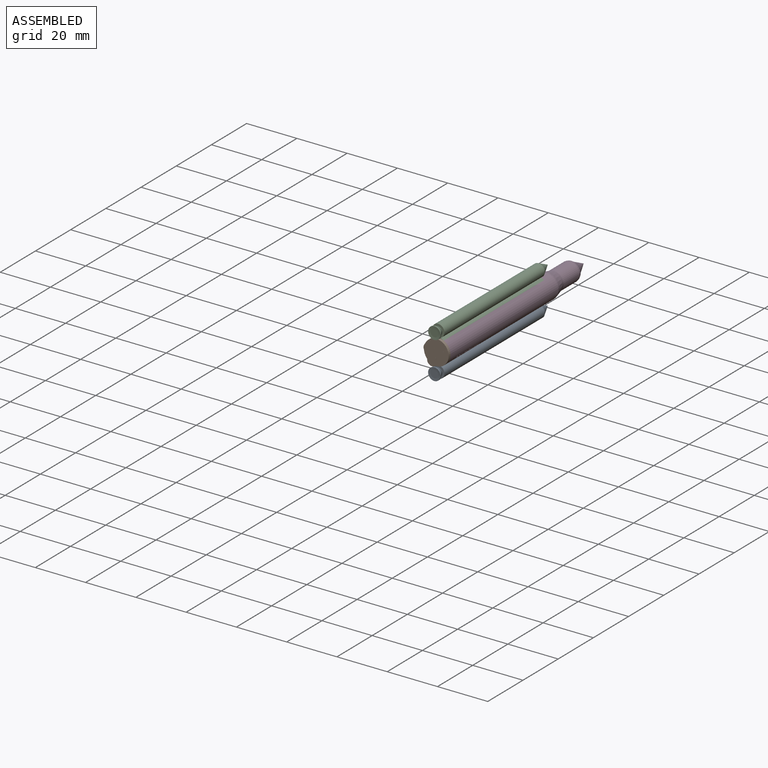
[diagram: assembled view]
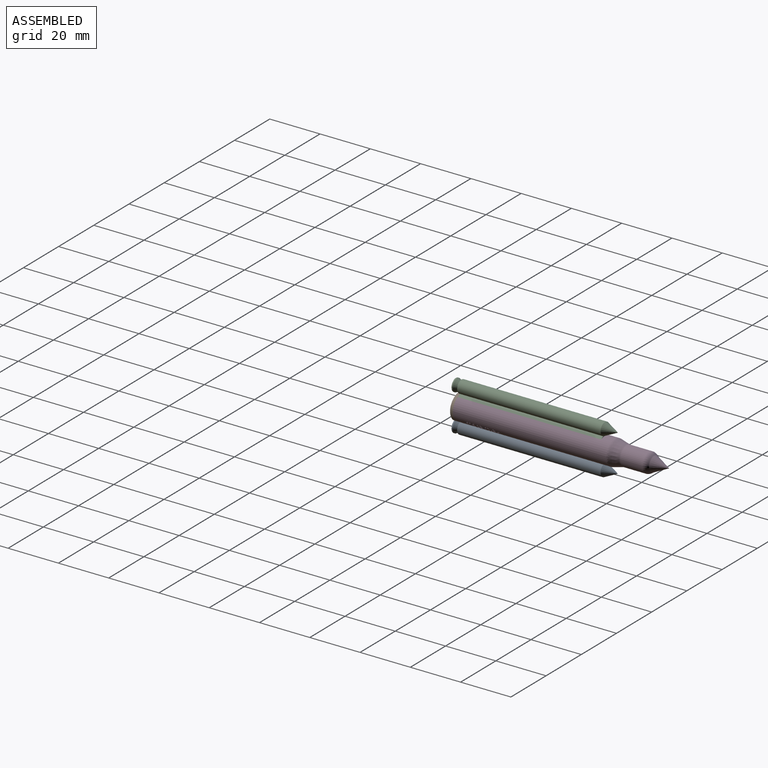
[diagram: assembled view, second angle]
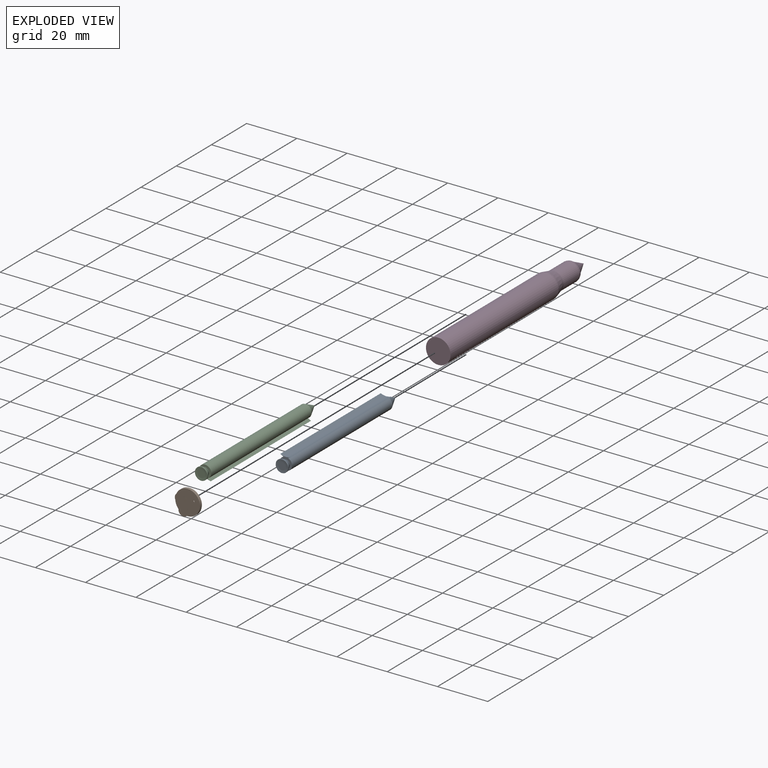
[diagram: exploded view]
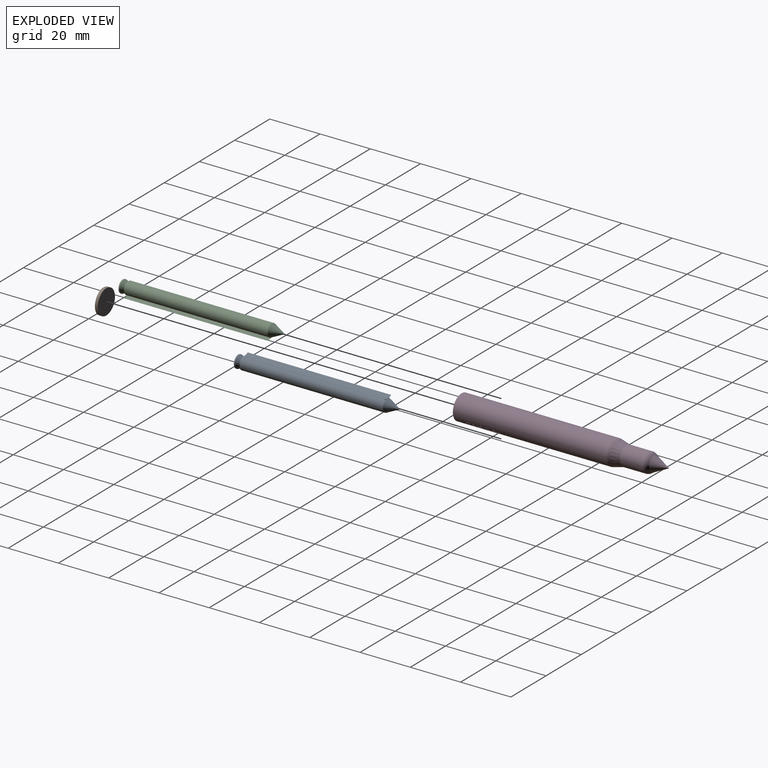
[diagram: exploded view, second angle]
ASSEMBLY  parts=4 mates=3
PART A: 12 faces, bbox 64.5x4.9x5.5 mm
  f0: cylinder r=2.47mm len=57.06mm, axis (-1,0,0), area 781.3mm2, adj f5,f6,f7,f10
  f1: plane 3.13x3.13mm, normal (1,0,0), area 7.7mm2, adj f2
  f2: cone r=2.47mm half-angle=84.1deg, axis (1,0,0), area 11.6mm2, adj f1,f3
  f3: cylinder r=2.47mm len=4.95mm, axis (-1,0,0), area 6.8mm2, adj f2,f4
  f4: cone r=1.56mm half-angle=26.7deg, axis (1,0,0), area 25.6mm2, adj f3,f5
  f5: plane 5.46x4.95mm, normal (1,0,0), area 11.9mm2, adj f0,f4,f7,f8,f10
  f6: cone r=2.47mm half-angle=25.6deg, axis (1,0,0), area 44.5mm2, adj f0,f9,f11
  f7: plane 57.06x1.29mm, normal (0,-0.47,0.88), area 83.3mm2, adj f0,f5,f8,f9
  f8: cylinder r=4.91mm len=57.06mm, axis (-1,0,0), area 259.2mm2, adj f5,f7,f9,f10,f11
  f9: plane 2.19x0.69mm, normal (-1,0,0), area 0.2mm2, adj f6,f7,f8
  f10: plane 57.06x1.29mm, normal (0,0.47,0.88), area 83.3mm2, adj f0,f5,f8,f11
  f11: plane 2.19x0.69mm, normal (-1,0,0), area 0.2mm2, adj f6,f8,f10
PART B: 12 faces, bbox 9.8x3x9.8 mm
  f0: plane 6.67x5.72mm, normal (0,-1,0), area 24.7mm2, adj f1,f2,f3,f7,f8,f10
  f1: plane 9.77x9.52mm, normal (0,-1,0), area 49.2mm2, adj f0,f2,f3,f5,f7,f8,f10
  f2: plane 1.92x0.73mm, normal (-0.35,0,0.94), area 0mm2, adj f0,f1,f8
  f3: cylinder r=4.91mm len=9.82mm, axis (0,1,0), area 34.2mm2, adj f0,f1,f4
  f4: plane 9.82x9.82mm, normal (0,1,0), area 75.7mm2, adj f3
  f5: cone r=0.4mm half-angle=40.4deg, axis (0,-1,0), area 17.7mm2, adj f1,f6
  f6: plane 3.95x3.95mm, normal (0,-1,0), area 12.2mm2, adj f5
  f7: plane 1.92x0.73mm, normal (-0.35,0,0.94), area 0mm2, adj f0,f1,f8
  f8: cone r=0.4mm half-angle=40.4deg, axis (0,-1,0), area 18.1mm2, adj f0,f1,f2,f7,f9
  f9: plane 3.95x3.95mm, normal (0,-1,0), area 12.2mm2, adj f8
  f10: cone r=0.4mm half-angle=40.4deg, axis (0,-1,0), area 18.1mm2, adj f0,f1,f11
  f11: plane 3.95x3.95mm, normal (0,-1,0), area 12.2mm2, adj f10
PART C: same geometry as A
PART D: 201 faces, bbox 9.8x82.6x9.8 mm
  f0: cylinder r=4.91mm len=61.06mm, axis (0,-1,0), area 1875.3mm2, adj f5,f6,f9,f10,f11,f12,f13,f14
  f1: cone r=4.91mm half-angle=14.2deg, axis (0,1,0), area 104.1mm2, adj f6,f7
  f2: cylinder r=3.82mm len=8.69mm, axis (0,-1,0), area 208.7mm2, adj f7,f8
  f3: cone r=2.94mm half-angle=37.5deg, axis (0,1,0), area 11.7mm2, adj f4,f8
  f4: cone r=2.94mm half-angle=26.4deg, axis (0,1,0), area 61.4mm2, adj f3
  f5: plane 9.82x9.82mm, normal (0,1,0), area 75.7mm2, adj f0
  f6: torus R=2.41mm, axis (0,1,0), area 19mm2, adj f0,f1
  f7: torus R=6.32mm, axis (0,-1,0), area 15mm2, adj f1,f2
  f8: torus R=1.32mm, axis (0,1,0), area 37.5mm2, adj f2,f3
  f9: extruded ~0.64x0.14mm, area 0.1mm2, adj f0,f10,f21,f22
  f10: extruded ~0.69x0.21mm, area 0.1mm2, adj f0,f9,f11,f22
  f11: extruded ~0.88x0.18mm, area 0.2mm2, adj f0,f10,f12,f22
  f12: plane 0.88x0.01mm, normal (0,0,-1), area 0mm2, adj f0,f11,f13,f22
  f13: plane 0.88x0.22mm, normal (0,-1,-0.09), area 0.2mm2, adj f0,f12,f14,f22
  f14: plane 0.65x0.15mm, normal (0,0,-1), area 0.1mm2, adj f0,f13,f15,f22
  f15: plane 1.63x1.2mm, normal (0,1,0), area 1.4mm2, adj f0,f14,f16,f22
  f16: plane 1.63x0.18mm, normal (0,0,1), area 0.3mm2, adj f0,f15,f17,f22
  f17: plane 1.63x0.64mm, normal (0,-1,0), area 0.9mm2, adj f0,f16,f18,f22
  f18: extruded ~1.18x0.29mm, area 0.3mm2, adj f0,f17,f19,f22
  f19: extruded ~0.92x0.25mm, area 0.2mm2, adj f0,f18,f20,f22
  f20: extruded ~0.82x0.13mm, area 0.1mm2, adj f0,f19,f21,f22
  f21: plane 0.82x0.17mm, normal (0,-0.99,0.15), area 0.1mm2, adj f0,f9,f20,f22
  f22: plane 1.22x0.69mm, normal (1,0,0), area 0.3mm2, adj f9,f10,f11,f12,f13,f14,f15,f16
  f23: extruded ~1.64x0.4mm, area 0.7mm2, adj f0,f24,f37,f38
  f24: extruded ~1.64x0.3mm, area 0.5mm2, adj f0,f23,f25,f38
  f25: plane 1.6x0.16mm, normal (0,-1,0), area 0.2mm2, adj f0,f24,f26,f38
  f26: extruded ~1.55x0.31mm, area 0.5mm2, adj f0,f25,f27,f38
  f27: extruded ~1.55x0.26mm, area 0.5mm2, adj f0,f26,f28,f38
  f28: extruded ~1.47x0.34mm, area 0.5mm2, adj f0,f27,f29,f38
  f29: extruded ~1.22x0.47mm, area 0.6mm2, adj f0,f28,f30,f38
  f30: extruded ~0.81x0.13mm, area 0.1mm2, adj f0,f29,f31,f38
  f31: extruded ~0.85x0.13mm, area 0.1mm2, adj f0,f30,f32,f38
  f32: plane 0.85x0.15mm, normal (0,-0.94,0.34), area 0.1mm2, adj f0,f31,f33,f38
  f33: extruded ~0.69x0.14mm, area 0.1mm2, adj f0,f32,f34,f38
  f34: extruded ~0.64x0.17mm, area 0.1mm2, adj f0,f33,f35,f38
  f35: extruded ~0.8x0.41mm, area 0.3mm2, adj f0,f34,f36,f38
  f36: extruded ~1.22x0.46mm, area 0.5mm2, adj f0,f35,f37,f38
  f37: extruded ~1.54x0.45mm, area 0.7mm2, adj f0,f23,f36,f38
  f38: plane 1.24x0.86mm, normal (1,0,0), area 0.4mm2, adj f23,f24,f25,f26,f27,f28,f29,f30
  f39: plane 1.35x0.78mm, normal (0,-1,0), area 0.8mm2, adj f0,f40,f55,f56
  f40: plane 0.65x0.18mm, normal (0,0,-1), area 0.1mm2, adj f0,f39,f41,f56
  f41: plane 1.36x0.78mm, normal (0,1,0), area 0.8mm2, adj f0,f40,f42,f56
  f42: extruded ~1.58x0.33mm, area 0.5mm2, adj f0,f41,f43,f56
  f43: extruded ~1.64x0.33mm, area 0.6mm2, adj f0,f42,f44,f56
  f44: extruded ~1.64x0.23mm, area 0.4mm2, adj f0,f43,f45,f56
  f45: extruded ~1.61x0.15mm, area 0.3mm2, adj f0,f44,f46,f56
  f46: plane 1.53x0.01mm, normal (0,0,1), area 0mm2, adj f0,f45,f47,f56
  f47: plane 1.63x0.16mm, normal (0,0.99,0.16), area 0.3mm2, adj f0,f46,f48,f56
  f48: plane 1.63x0.15mm, normal (0,0,1), area 0.2mm2, adj f0,f47,f49,f56
  f49: plane 1.63x1.2mm, normal (0,-1,0), area 1.4mm2, adj f0,f48,f50,f56
  f50: plane 0.65x0.18mm, normal (0,0,-1), area 0.1mm2, adj f0,f49,f51,f56
  f51: plane 1.24x0.63mm, normal (0,1,0), area 0.6mm2, adj f0,f50,f52,f56
  f52: extruded ~1.48x0.34mm, area 0.5mm2, adj f0,f51,f53,f56
  f53: extruded ~1.55x0.27mm, area 0.5mm2, adj f0,f52,f54,f56
  f54: extruded ~1.55x0.21mm, area 0.3mm2, adj f0,f53,f55,f56
  f55: extruded ~1.5x0.22mm, area 0.3mm2, adj f0,f39,f54,f56
  f56: plane 1.22x1mm, normal (1,0,0), area 0.5mm2, adj f39,f40,f41,f42,f43,f44,f45,f46
  f57: plane 1.63x0.18mm, normal (0,0,1), area 0.3mm2, adj f0,f58,f59,f60
  f58: plane 1.68x1.63mm, normal (0,-1,0), area 1.6mm2, adj f0,f57,f60
  f59: plane 1.68x1.63mm, normal (0,1,0), area 1.6mm2, adj f0,f57,f60
  f60: plane 1.68x0.18mm, normal (1,0,0), area 0.3mm2, adj f0,f57,f58,f59
  f61: extruded ~1.59x0.26mm, area 0.4mm2, adj f0,f62,f85,f86
  f62: extruded ~1.42x0.2mm, area 0.3mm2, adj f0,f61,f63,f86
  f63: extruded ~1.27x0.29mm, area 0.4mm2, adj f0,f62,f64,f86
  f64: extruded ~1.15x0.21mm, area 0.3mm2, adj f0,f63,f65,f86
  f65: extruded ~1.07x0.08mm, area 0.1mm2, adj f0,f64,f66,f86
  f66: extruded ~1.01x0.08mm, area 0.1mm2, adj f0,f65,f67,f86
  f67: extruded ~0.94x0.11mm, area 0.1mm2, adj f0,f66,f68,f86
  f68: extruded ~0.83x0.19mm, area 0.2mm2, adj f0,f67,f69,f86
  f69: extruded ~0.86x0.33mm, area 0.3mm2, adj f0,f68,f70,f86
  f70: plane 0.86x0.15mm, normal (0,-0.92,0.4), area 0.1mm2, adj f0,f69,f71,f86
  f71: extruded ~0.71x0.38mm, area 0.3mm2, adj f0,f70,f72,f86
  f72: extruded ~0.71x0.33mm, area 0.2mm2, adj f0,f71,f73,f86
  f73: extruded ~0.95x0.23mm, area 0.2mm2, adj f0,f72,f74,f86
  f74: extruded ~1.08x0.14mm, area 0.1mm2, adj f0,f73,f75,f86
  f75: extruded ~1.17x0.11mm, area 0.2mm2, adj f0,f74,f76,f86
  f76: extruded ~1.26x0.24mm, area 0.3mm2, adj f0,f75,f77,f86
  f77: extruded ~1.34x0.24mm, area 0.3mm2, adj f0,f76,f78,f86
  f78: extruded ~1.43x0.12mm, area 0.2mm2, adj f0,f77,f79,f86
  f79: extruded ~1.52x0.14mm, area 0.2mm2, adj f0,f78,f80,f86
  f80: extruded ~1.55x0.22mm, area 0.3mm2, adj f0,f79,f81,f86
  f81: extruded ~1.55x0.19mm, area 0.3mm2, adj f0,f80,f82,f86
  f82: extruded ~1.54x0.19mm, area 0.3mm2, adj f0,f81,f83,f86
  f83: plane 1.6x0.17mm, normal (0,1,0), area 0.3mm2, adj f0,f82,f84,f86
  f84: extruded ~1.64x0.37mm, area 0.6mm2, adj f0,f83,f85,f86
  f85: extruded ~1.64x0.35mm, area 0.6mm2, adj f0,f61,f84,f86
  f86: plane 1.24x0.85mm, normal (1,0,0), area 0.4mm2, adj f61,f62,f63,f64,f65,f66,f67,f68
  f87: extruded ~1.57x0.33mm, area 0.5mm2, adj f0,f88,f111,f112
  f88: extruded ~1.35x0.27mm, area 0.4mm2, adj f0,f87,f89,f112
  f89: extruded ~1.14x0.35mm, area 0.4mm2, adj f0,f88,f90,f112
  f90: extruded ~0.97x0.22mm, area 0.2mm2, adj f0,f89,f91,f112
  f91: extruded ~0.87x0.1mm, area 0.1mm2, adj f0,f90,f92,f112
  f92: extruded ~0.77x0.14mm, area 0.1mm2, adj f0,f91,f93,f112
  f93: extruded ~0.63x0.18mm, area 0.1mm2, adj f0,f92,f94,f112
  f94: extruded ~0.41x0.23mm, area 0.1mm2, adj f0,f93,f95,f112
  f95: extruded ~0.44x0.38mm, area 0.2mm2, adj f0,f94,f96,f112
  f96: plane 0.44x0.16mm, normal (0,-0.94,0.34), area 0.1mm2, adj f0,f95,f97,f112
  f97: extruded ~0.44x0.22mm, area 0.1mm2, adj f0,f96,f98,f112
  f98: extruded ~0.37x0.25mm, area 0.1mm2, adj f0,f97,f99,f112
  f99: extruded ~0.62x0.29mm, area 0.1mm2, adj f0,f98,f100,f112
  f100: extruded ~0.92x0.29mm, area 0.2mm2, adj f0,f99,f101,f112
  f101: extruded ~1.1x0.32mm, area 0.4mm2, adj f0,f100,f102,f112
  f102: extruded ~1.18x0.24mm, area 0.3mm2, adj f0,f101,f103,f112
  f103: extruded ~1.26x0.11mm, area 0.2mm2, adj f0,f102,f104,f112
  f104: extruded ~1.36x0.14mm, area 0.2mm2, adj f0,f103,f105,f112
  f105: extruded ~1.5x0.2mm, area 0.3mm2, adj f0,f104,f106,f112
  f106: extruded ~1.54x0.28mm, area 0.4mm2, adj f0,f105,f107,f112
  f107: extruded ~1.54x0.23mm, area 0.4mm2, adj f0,f106,f108,f112
  f108: extruded ~1.53x0.21mm, area 0.3mm2, adj f0,f107,f109,f112
  f109: plane 1.6x0.18mm, normal (0,1,0), area 0.3mm2, adj f0,f108,f110,f112
  f110: extruded ~1.64x0.44mm, area 0.7mm2, adj f0,f109,f111,f112
  f111: extruded ~1.64x0.41mm, area 0.7mm2, adj f0,f87,f110,f112
  f112: plane 1.64x1mm, normal (1,0,0), area 0.6mm2, adj f87,f88,f89,f90,f91,f92,f93,f94
  f113: plane 1.63x1.6mm, normal (0,1,0), area 1.6mm2, adj f0,f114,f118,f119
  f114: plane 1.63x0.89mm, normal (0,0,1), area 1.4mm2, adj f0,f113,f115,f119
  f115: plane 1.63x0.17mm, normal (0,-1,0), area 0.3mm2, adj f0,f114,f116,f119
  f116: plane 1.53x0.7mm, normal (0,0,-1), area 1.1mm2, adj f0,f115,f117,f119
  f117: plane 1.53x1.43mm, normal (0,-1,0), area 1.3mm2, adj f0,f116,f118,f119
  f118: plane 0.19x0.13mm, normal (0,0,-1), area 0mm2, adj f0,f113,f117,f119
  f119: plane 1.6x0.89mm, normal (1,0,0), area 0.4mm2, adj f113,f114,f115,f116,f117,f118
  f120: extruded ~1.57x0.33mm, area 0.5mm2, adj f0,f121,f144,f145
  f121: extruded ~1.35x0.27mm, area 0.4mm2, adj f0,f120,f122,f145
  f122: extruded ~1.14x0.35mm, area 0.4mm2, adj f0,f121,f123,f145
  f123: extruded ~0.97x0.22mm, area 0.2mm2, adj f0,f122,f124,f145
  f124: extruded ~0.87x0.1mm, area 0.1mm2, adj f0,f123,f125,f145
  f125: extruded ~0.77x0.14mm, area 0.1mm2, adj f0,f124,f126,f145
  f126: extruded ~0.63x0.18mm, area 0.1mm2, adj f0,f125,f127,f145
  f127: extruded ~0.41x0.23mm, area 0.1mm2, adj f0,f126,f128,f145
  f128: extruded ~0.44x0.38mm, area 0.2mm2, adj f0,f127,f129,f145
  f129: plane 0.44x0.16mm, normal (0,-0.94,0.34), area 0.1mm2, adj f0,f128,f130,f145
  f130: extruded ~0.44x0.22mm, area 0.1mm2, adj f0,f129,f131,f145
  f131: extruded ~0.37x0.25mm, area 0.1mm2, adj f0,f130,f132,f145
  f132: extruded ~0.62x0.29mm, area 0.1mm2, adj f0,f131,f133,f145
  f133: extruded ~0.92x0.29mm, area 0.2mm2, adj f0,f132,f134,f145
  f134: extruded ~1.1x0.32mm, area 0.4mm2, adj f0,f133,f135,f145
  f135: extruded ~1.18x0.24mm, area 0.3mm2, adj f0,f134,f136,f145
  f136: extruded ~1.26x0.11mm, area 0.2mm2, adj f0,f135,f137,f145
  f137: extruded ~1.36x0.14mm, area 0.2mm2, adj f0,f136,f138,f145
  f138: extruded ~1.5x0.2mm, area 0.3mm2, adj f0,f137,f139,f145
  f139: extruded ~1.54x0.28mm, area 0.4mm2, adj f0,f138,f140,f145
  f140: extruded ~1.54x0.23mm, area 0.4mm2, adj f0,f139,f141,f145
  f141: extruded ~1.53x0.21mm, area 0.3mm2, adj f0,f140,f142,f145
  f142: plane 1.6x0.18mm, normal (0,1,0), area 0.3mm2, adj f0,f141,f143,f145
  f143: extruded ~1.64x0.44mm, area 0.7mm2, adj f0,f142,f144,f145
  f144: extruded ~1.64x0.41mm, area 0.7mm2, adj f0,f120,f143,f145
  f145: plane 1.64x1mm, normal (1,0,0), area 0.6mm2, adj f120,f121,f122,f123,f124,f125,f126,f127
  f146: extruded ~0.88x0.23mm, area 0.2mm2, adj f147,f164,f165,f199
  f147: extruded ~0.88x0.22mm, area 0.2mm2, adj f146,f148,f165,f199
  f148: extruded ~1.12x0.26mm, area 0.3mm2, adj f147,f149,f165,f199
  f149: plane 1.12x0.63mm, normal (0,0,-1), area 0.7mm2, adj f148,f164,f165,f199
  f150: extruded ~1.64x0.42mm, area 0.7mm2, adj f0,f151,f163,f165
  f151: extruded ~1.64x0.21mm, area 0.3mm2, adj f0,f150,f152,f165
  f152: extruded ~1.63x0.18mm, area 0.3mm2, adj f0,f151,f153,f165
  f153: plane 1.6x0.16mm, normal (0,-1,0), area 0.2mm2, adj f0,f152,f154,f165
  f154: extruded ~1.55x0.38mm, area 0.6mm2, adj f0,f153,f155,f165
  f155: extruded ~1.55x0.28mm, area 0.5mm2, adj f0,f154,f156,f165
  f156: extruded ~1.47x0.32mm, area 0.5mm2, adj f0,f155,f157,f165
  f157: plane 1.24x0.82mm, normal (0,0,1), area 1mm2, adj f0,f156,f158,f165
  f158: plane 1.24x0.11mm, normal (0,-1,0), area 0.1mm2, adj f0,f157,f159,f165
  f159: extruded ~1.15x0.39mm, area 0.4mm2, adj f0,f158,f160,f165
  f160: extruded ~0.78x0.36mm, area 0.3mm2, adj f0,f159,f161,f165
  f161: extruded ~0.81x0.38mm, area 0.3mm2, adj f0,f160,f162,f165
  f162: extruded ~1.22x0.46mm, area 0.5mm2, adj f0,f161,f163,f165
  f163: extruded ~1.54x0.45mm, area 0.7mm2, adj f0,f150,f162,f165
  f164: extruded ~1.12x0.26mm, area 0.3mm2, adj f146,f149,f165,f199
  f165: plane 1.24x1.01mm, normal (1,0,0), area 0.6mm2, adj f146,f147,f148,f149,f150,f151,f152,f153
  f166: extruded ~0.88x0.23mm, area 0.2mm2, adj f167,f184,f185,f200
  f167: extruded ~0.88x0.22mm, area 0.2mm2, adj f166,f168,f185,f200
  f168: extruded ~1.12x0.26mm, area 0.3mm2, adj f167,f169,f185,f200
  f169: plane 1.12x0.63mm, normal (0,0,-1), area 0.7mm2, adj f168,f184,f185,f200
  f170: extruded ~1.64x0.42mm, area 0.7mm2, adj f0,f171,f183,f185
  f171: extruded ~1.64x0.21mm, area 0.3mm2, adj f0,f170,f172,f185
  f172: extruded ~1.63x0.18mm, area 0.3mm2, adj f0,f171,f173,f185
  f173: plane 1.6x0.16mm, normal (0,-1,0), area 0.2mm2, adj f0,f172,f174,f185
  f174: extruded ~1.55x0.38mm, area 0.6mm2, adj f0,f173,f175,f185
  f175: extruded ~1.55x0.28mm, area 0.5mm2, adj f0,f174,f176,f185
  f176: extruded ~1.47x0.32mm, area 0.5mm2, adj f0,f175,f177,f185
  f177: plane 1.24x0.82mm, normal (0,0,1), area 1mm2, adj f0,f176,f178,f185
  f178: plane 1.24x0.11mm, normal (0,-1,0), area 0.1mm2, adj f0,f177,f179,f185
  f179: extruded ~1.15x0.39mm, area 0.4mm2, adj f0,f178,f180,f185
  f180: extruded ~0.78x0.36mm, area 0.3mm2, adj f0,f179,f181,f185
  f181: extruded ~0.81x0.38mm, area 0.3mm2, adj f0,f180,f182,f185
  f182: extruded ~1.22x0.46mm, area 0.5mm2, adj f0,f181,f183,f185
  f183: extruded ~1.54x0.45mm, area 0.7mm2, adj f0,f170,f182,f185
  f184: extruded ~1.12x0.26mm, area 0.3mm2, adj f166,f169,f185,f200
  f185: plane 1.24x1.01mm, normal (1,0,0), area 0.6mm2, adj f166,f167,f168,f169,f170,f171,f172,f173
  f186: plane 1.63x0.19mm, normal (0,0,1), area 0.3mm2, adj f0,f187,f197,f198
  f187: plane 1.63x1.6mm, normal (0,-1,0), area 1.6mm2, adj f0,f186,f188,f198
  f188: plane 0.19x0.13mm, normal (0,0,-1), area 0mm2, adj f0,f187,f189,f198
  f189: plane 0.94x0.68mm, normal (0,1,0), area 0.4mm2, adj f0,f188,f190,f198
  f190: plane 0.94x0.84mm, normal (0,0,-1), area 0.8mm2, adj f0,f189,f191,f198
  f191: plane 0.94x0.68mm, normal (0,-1,0), area 0.4mm2, adj f0,f190,f192,f198
  f192: plane 0.19x0.13mm, normal (0,0,-1), area 0mm2, adj f0,f191,f193,f198
  f193: plane 1.63x1.6mm, normal (0,1,0), area 1.6mm2, adj f0,f192,f194,f198
  f194: plane 1.63x0.19mm, normal (0,0,1), area 0.3mm2, adj f0,f193,f195,f198
  f195: plane 1.63x0.75mm, normal (0,-1,0), area 1mm2, adj f0,f194,f196,f198
  f196: plane 1.09x0.84mm, normal (0,0,1), area 0.9mm2, adj f0,f195,f197,f198
  f197: plane 1.63x0.75mm, normal (0,1,0), area 1mm2, adj f0,f186,f196,f198
  f198: plane 1.6x1.21mm, normal (1,0,0), area 0.7mm2, adj f186,f187,f188,f189,f190,f191,f192,f193
  f199: cylinder r=4.91mm len=0.63mm, axis (0,-1,0), area 0.2mm2, adj f146,f147,f148,f149,f164
  f200: cylinder r=4.91mm len=0.63mm, axis (0,-1,0), area 0.2mm2, adj f166,f167,f168,f169,f184
PLACE A rot(axis=(0.71,-0.71,0),180deg) t=(-9.27,89.37,-5.42)mm
PLACE B t=(-14.33,32.31,1.97)mm
PLACE C rot(axis=(0,0,-1),90deg) t=(-19.39,89.37,9.35)mm
PLACE D rot(axis=(1,0,0),180deg) t=(-14.33,43.2,1.97)mm
MATE fastened C.f8 <-> D.f0  axis (0,1,0) through (-14.33,32.31,1.97)mm
MATE fastened D.f0 <-> A.f8  axis (0,1,0) through (-14.33,32.31,1.97)mm
MATE fastened D.f0 <-> B.f3  axis (0,-1,0) through (-14.33,32.31,1.97)mm
